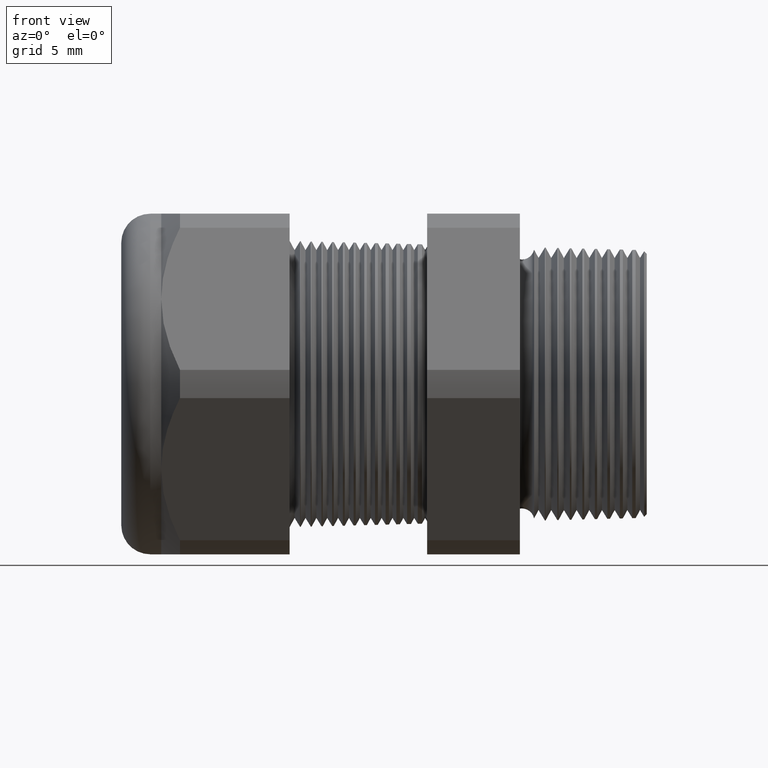
[diagram: clean part render]
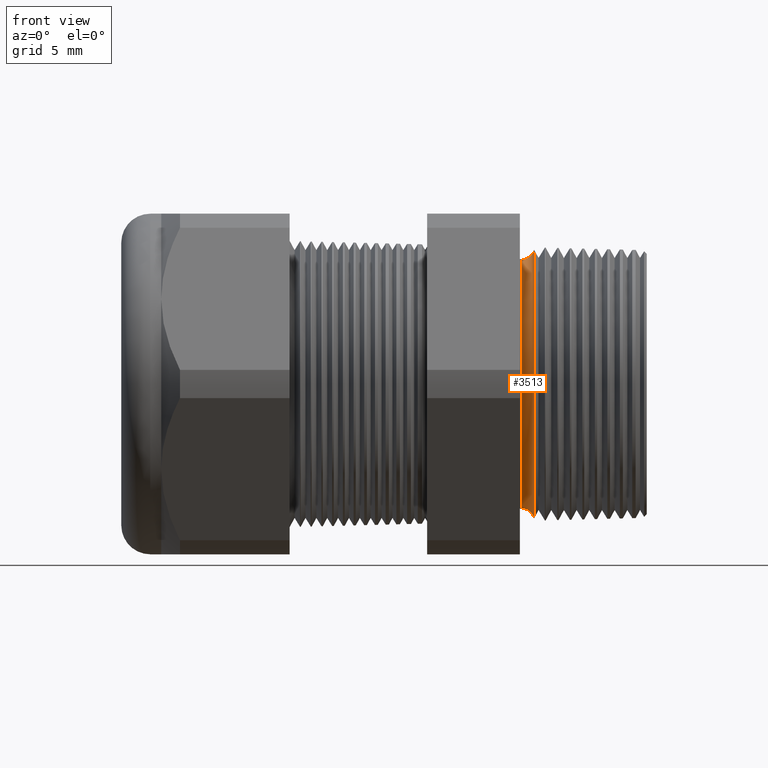
[diagram: same view with one face highlighted and labeled with its STEP entity id]
A machine part, front view. The second image highlights one B-rep face of the part: STEP entity #3513.
In plain terms, the highlighted toroidal blend (fillet) surface has major radius 9.6104 mm and minor (blend) radius 0.889 mm.
Its self-contained STEP definition (entity closure, byte-faithful):
#68 = CARTESIAN_POINT ( 'NONE',  ( -0.3049999999999999400, 4.204954590622104500E-017, 0.3433605994438362900 ) ) ;
#97 = DIRECTION ( 'NONE',  ( 0.0000000000000000000, 0.0000000000000000000, -1.000000000000000000 ) ) ;
#98 = DIRECTION ( 'NONE',  ( 0.0000000000000000000, -1.000000000000000000, 0.0000000000000000000 ) ) ;
#99 = CARTESIAN_POINT ( 'NONE',  ( -0.3049999999999999400, 0.0000000000000000000, -0.3783605994438362700 ) ) ;
#100 = AXIS2_PLACEMENT_3D ( 'NONE', #99, #98, #97 ) ;
#101 = CIRCLE ( 'NONE', #100, 0.03499999999999996900 ) ;
#102 = CARTESIAN_POINT ( 'NONE',  ( -0.2708463023710462300, 4.539893538562461000E-017, -0.3707104400814432700 ) ) ;
#103 = CARTESIAN_POINT ( 'NONE',  ( -0.3049999999999999400, 0.0000000000000000000, -0.3433605994438362900 ) ) ;
#115 = CARTESIAN_POINT ( 'NONE',  ( -0.2708463023710462300, 0.0000000000000000000, 0.3707104400814432700 ) ) ;
#116 = DIRECTION ( 'NONE',  ( 0.0000000000000000000, 0.0000000000000000000, 1.000000000000000000 ) ) ;
#117 = DIRECTION ( 'NONE',  ( 1.000000000000000000, 0.0000000000000000000, 0.0000000000000000000 ) ) ;
#118 = CARTESIAN_POINT ( 'NONE',  ( -0.2708463023710462300, 0.0000000000000000000, 0.0000000000000000000 ) ) ;
#119 = AXIS2_PLACEMENT_3D ( 'NONE', #118, #117, #116 ) ;
#120 = CIRCLE ( 'NONE', #119, 0.3707104400814433300 ) ;
#126 = DIRECTION ( 'NONE',  ( 0.0000000000000000000, 1.224646799147352700E-016, 1.000000000000000000 ) ) ;
#127 = DIRECTION ( 'NONE',  ( 0.0000000000000000000, 1.000000000000000000, -1.224646799147353200E-016 ) ) ;
#128 = CARTESIAN_POINT ( 'NONE',  ( -0.3049999999999999400, 4.633580970323678400E-017, 0.3783605994438362700 ) ) ;
#129 = AXIS2_PLACEMENT_3D ( 'NONE', #128, #127, #126 ) ;
#130 = CIRCLE ( 'NONE', #129, 0.03499999999999996900 ) ;
#157 = DIRECTION ( 'NONE',  ( 0.0000000000000000000, 0.0000000000000000000, -1.000000000000000000 ) ) ;
#158 = DIRECTION ( 'NONE',  ( 1.000000000000000000, 0.0000000000000000000, 0.0000000000000000000 ) ) ;
#159 = AXIS2_PLACEMENT_3D ( 'NONE', #162, #158, #157 ) ;
#160 = TOROIDAL_SURFACE ( 'NONE', #159, 0.3783605994438362700, 0.03499999999999994800 ) ;
#162 = CARTESIAN_POINT ( 'NONE',  ( -0.3049999999999999400, 0.0000000000000000000, 0.0000000000000000000 ) ) ;
#163 = FACE_OUTER_BOUND ( 'NONE', #3512, .T. ) ;
#209 = DIRECTION ( 'NONE',  ( 0.0000000000000000000, 0.0000000000000000000, -1.000000000000000000 ) ) ;
#210 = DIRECTION ( 'NONE',  ( 1.000000000000000000, 0.0000000000000000000, 0.0000000000000000000 ) ) ;
#211 = CARTESIAN_POINT ( 'NONE',  ( -0.3049999999999999400, 0.0000000000000000000, 0.0000000000000000000 ) ) ;
#212 = AXIS2_PLACEMENT_3D ( 'NONE', #211, #210, #209 ) ;
#213 = CIRCLE ( 'NONE', #212, 0.3433605994438362900 ) ;
#3491 = ORIENTED_EDGE ( 'NONE', *, *, #3498, .T. ) ;
#3492 = ORIENTED_EDGE ( 'NONE', *, *, #3557, .T. ) ;
#3495 = VERTEX_POINT ( 'NONE', #68 ) ;
#3498 = EDGE_CURVE ( 'NONE', #3501, #3495, #130, .T. ) ;
#3500 = EDGE_CURVE ( 'NONE', #3501, #3511, #120, .T. ) ;
#3501 = VERTEX_POINT ( 'NONE', #115 ) ;
#3508 = VERTEX_POINT ( 'NONE', #103 ) ;
#3510 = EDGE_CURVE ( 'NONE', #3511, #3508, #101, .T. ) ;
#3511 = VERTEX_POINT ( 'NONE', #102 ) ;
#3512 = EDGE_LOOP ( 'NONE', ( #3491, #3492, #3569, #3525 ) ) ;
#3513 = ADVANCED_FACE ( 'NONE', ( #163 ), #160, .F. ) ;
#3525 = ORIENTED_EDGE ( 'NONE', *, *, #3500, .F. ) ;
#3557 = EDGE_CURVE ( 'NONE', #3495, #3508, #213, .T. ) ;
#3569 = ORIENTED_EDGE ( 'NONE', *, *, #3510, .F. ) ;